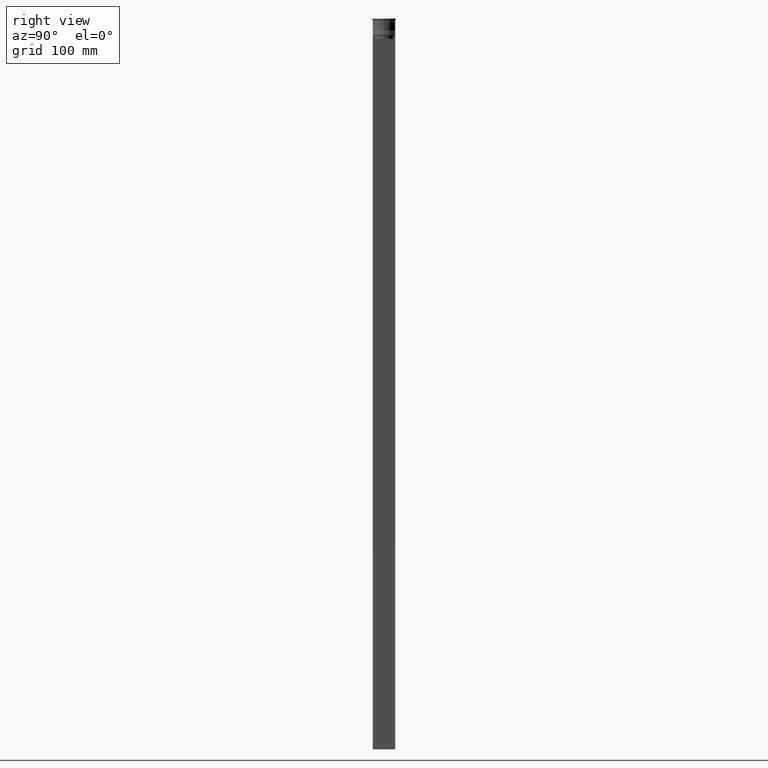
[diagram: clean part render]
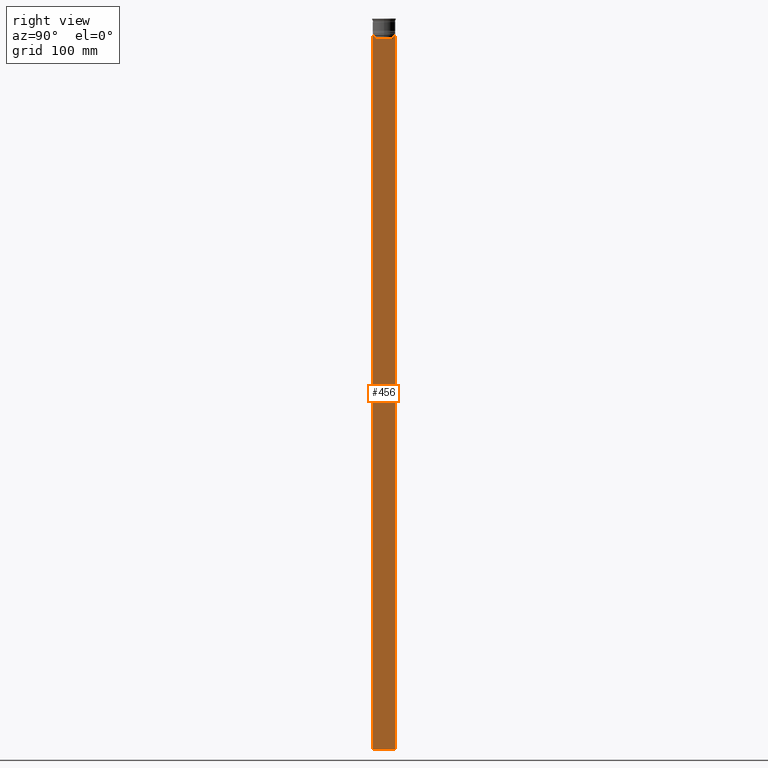
[diagram: same view with one face highlighted and labeled with its STEP entity id]
A machine part, right view. The second image highlights one B-rep face of the part: STEP entity #456.
In plain terms, the highlighted planar face has unit normal (-1, 0, 0).
Its self-contained STEP definition (entity closure, byte-faithful):
#60 = CARTESIAN_POINT ( 'NONE',  ( 0.5000000000000000000, 9.386692708297204035, -14.00000000000000178 ) ) ;
#70 = CARTESIAN_POINT ( 'NONE',  ( 0.5000000000000000000, 7.884161337770803080, 0.000000000000000000 ) ) ;
#77 = CARTESIAN_POINT ( 'NONE',  ( 0.5000000000000000000, -7.884161337770803080, 0.000000000000000000 ) ) ;
#78 = CARTESIAN_POINT ( 'NONE',  ( 0.5000000000000000000, -9.500000000000001776, -14.00000000000000178 ) ) ;
#87 = VERTEX_POINT ( 'NONE', #1213 ) ;
#130 = CARTESIAN_POINT ( 'NONE',  ( 0.5000000000000000000, -9.500000000000001776, -14.00000000000000178 ) ) ;
#141 = LINE ( 'NONE', #1969, #2013 ) ;
#145 = EDGE_CURVE ( 'NONE', #294, #668, #182, .T. ) ;
#182 = LINE ( 'NONE', #1000, #2451 ) ;
#213 = EDGE_CURVE ( 'NONE', #294, #270, #547, .T. ) ;
#238 = CARTESIAN_POINT ( 'NONE',  ( 0.5000000000000000000, -7.884161337770803080, -14.50000000000000000 ) ) ;
#246 = VERTEX_POINT ( 'NONE', #1133 ) ;
#260 = VECTOR ( 'NONE', #2550, 1000.000000000000000 ) ;
#265 = ORIENTED_EDGE ( 'NONE', *, *, #1553, .T. ) ;
#270 = VERTEX_POINT ( 'NONE', #1333 ) ;
#280 = CARTESIAN_POINT ( 'NONE',  ( 0.5000000000000000000, 8.385105843100605583, -14.00000000000000178 ) ) ;
#294 = VERTEX_POINT ( 'NONE', #484 ) ;
#300 = CARTESIAN_POINT ( 'NONE',  ( 0.5000000000000000000, -8.385105843100605583, -14.00000000000000178 ) ) ;
#309 = VECTOR ( 'NONE', #916, 1000.000000000000000 ) ;
#312 = EDGE_LOOP ( 'NONE', ( #1087, #935, #265, #698, #409, #2601, #1836, #1490, #2042, #2571, #2187, #632 ) ) ;
#321 = B_SPLINE_CURVE_WITH_KNOTS ( 'NONE', 3,
 ( #610, #1873, #1835, #594 ),
 .UNSPECIFIED., .F., .F.,
 ( 4, 4 ),
 ( 0.03673372442973153046, 0.03744389749832059688 ),
 .UNSPECIFIED. ) ;
#356 = CARTESIAN_POINT ( 'NONE',  ( 0.5000000000000000000, 8.385105843100605583, -14.00000000000000178 ) ) ;
#376 = CARTESIAN_POINT ( 'NONE',  ( 0.5000000000000000000, 7.884161337770803080, -14.50000000000000000 ) ) ;
#378 = FACE_OUTER_BOUND ( 'NONE', #312, .T. ) ;
#381 = AXIS2_PLACEMENT_3D ( 'NONE', #1755, #2593, #2541 ) ;
#409 = ORIENTED_EDGE ( 'NONE', *, *, #673, .T. ) ;
#456 = ADVANCED_FACE ( 'NONE', ( #378 ), #2638, .F. ) ;
#481 = VERTEX_POINT ( 'NONE', #280 ) ;
#484 = CARTESIAN_POINT ( 'NONE',  ( 0.5000000000000000000, 9.499999999999998224, -14.00000000000000178 ) ) ;
#502 = CARTESIAN_POINT ( 'NONE',  ( 0.5000000000000000000, 7.884161337770803080, -17.00000000000000000 ) ) ;
#531 = VERTEX_POINT ( 'NONE', #1261 ) ;
#547 = LINE ( 'NONE', #1778, #1275 ) ;
#579 = CARTESIAN_POINT ( 'NONE',  ( 0.5000000000000000000, 8.051152811434374001, -14.33334332653219079 ) ) ;
#594 = CARTESIAN_POINT ( 'NONE',  ( 0.5000000000000000000, -8.385105843100605583, -14.00000000000000178 ) ) ;
#600 = DIRECTION ( 'NONE',  ( 0.000000000000000000, -1.000000000000000000, 0.000000000000000000 ) ) ;
#610 = CARTESIAN_POINT ( 'NONE',  ( 0.5000000000000000000, -7.884161337770803080, -14.50000000000000000 ) ) ;
#632 = ORIENTED_EDGE ( 'NONE', *, *, #145, .T. ) ;
#639 = EDGE_CURVE ( 'NONE', #2170, #87, #1250, .T. ) ;
#668 = VERTEX_POINT ( 'NONE', #60 ) ;
#671 = CARTESIAN_POINT ( 'NONE',  ( 0.5000000000000000000, -9.500000000000001776, -14.00000000000000178 ) ) ;
#673 = EDGE_CURVE ( 'NONE', #87, #1015, #1691, .T. ) ;
#698 = ORIENTED_EDGE ( 'NONE', *, *, #639, .T. ) ;
#704 = LINE ( 'NONE', #70, #260 ) ;
#862 = CARTESIAN_POINT ( 'NONE',  ( 0.5000000000000000000, 7.899999999999994138, -17.00000000000000000 ) ) ;
#916 = DIRECTION ( 'NONE',  ( 0.000000000000000000, -1.000000000000000000, 0.000000000000000000 ) ) ;
#935 = ORIENTED_EDGE ( 'NONE', *, *, #1650, .T. ) ;
#949 = VECTOR ( 'NONE', #1308, 1000.000000000000000 ) ;
#1000 = CARTESIAN_POINT ( 'NONE',  ( 0.5000000000000000000, -9.500000000000001776, -14.00000000000000178 ) ) ;
#1015 = VERTEX_POINT ( 'NONE', #238 ) ;
#1030 = VECTOR ( 'NONE', #2300, 1000.000000000000000 ) ;
#1087 = ORIENTED_EDGE ( 'NONE', *, *, #1563, .T. ) ;
#1133 = CARTESIAN_POINT ( 'NONE',  ( 0.5000000000000000000, -9.500000000000001776, -14.00000000000000178 ) ) ;
#1136 = DIRECTION ( 'NONE',  ( -0.000000000000000000, -0.000000000000000000, 1.000000000000000000 ) ) ;
#1213 = CARTESIAN_POINT ( 'NONE',  ( 0.5000000000000000000, -7.884161337770803080, -17.00000000000000000 ) ) ;
#1250 = LINE ( 'NONE', #862, #949 ) ;
#1261 = CARTESIAN_POINT ( 'NONE',  ( 0.5000000000000000000, -9.500000000000001776, -614.0000000000000000 ) ) ;
#1275 = VECTOR ( 'NONE', #1958, 1000.000000000000000 ) ;
#1294 = VERTEX_POINT ( 'NONE', #2163 ) ;
#1308 = DIRECTION ( 'NONE',  ( 0.000000000000000000, -1.000000000000000000, 0.000000000000000000 ) ) ;
#1314 = DIRECTION ( 'NONE',  ( 0.000000000000000000, 1.000000000000000000, 0.000000000000000000 ) ) ;
#1333 = CARTESIAN_POINT ( 'NONE',  ( 0.5000000000000000000, 9.499999999999998224, -614.0000000000000000 ) ) ;
#1397 = DIRECTION ( 'NONE',  ( 0.000000000000000000, -1.000000000000000000, 0.000000000000000000 ) ) ;
#1449 = EDGE_CURVE ( 'NONE', #1015, #1534, #321, .T. ) ;
#1456 = VECTOR ( 'NONE', #1520, 1000.000000000000000 ) ;
#1480 = CARTESIAN_POINT ( 'NONE',  ( 0.5000000000000000000, -9.386692708297204035, -14.00000000000000178 ) ) ;
#1490 = ORIENTED_EDGE ( 'NONE', *, *, #2589, .T. ) ;
#1520 = DIRECTION ( 'NONE',  ( 0.000000000000000000, 0.000000000000000000, -1.000000000000000000 ) ) ;
#1534 = VERTEX_POINT ( 'NONE', #300 ) ;
#1537 = LINE ( 'NONE', #2377, #1456 ) ;
#1553 = EDGE_CURVE ( 'NONE', #1294, #2170, #704, .T. ) ;
#1563 = EDGE_CURVE ( 'NONE', #668, #481, #2523, .T. ) ;
#1594 = VERTEX_POINT ( 'NONE', #1480 ) ;
#1650 = EDGE_CURVE ( 'NONE', #481, #1294, #2039, .T. ) ;
#1673 = VECTOR ( 'NONE', #1397, 1000.000000000000000 ) ;
#1691 = LINE ( 'NONE', #77, #2531 ) ;
#1755 = CARTESIAN_POINT ( 'NONE',  ( 0.5000000000000000000, -9.500000000000001776, 5.026297590440445440 ) ) ;
#1778 = CARTESIAN_POINT ( 'NONE',  ( 0.5000000000000000000, 9.499999999999998224, 5.026297590440445440 ) ) ;
#1835 = CARTESIAN_POINT ( 'NONE',  ( 0.5000000000000000000, -8.218133703942523738, -14.16667607853445787 ) ) ;
#1836 = ORIENTED_EDGE ( 'NONE', *, *, #2353, .T. ) ;
#1873 = CARTESIAN_POINT ( 'NONE',  ( 0.5000000000000000000, -8.051152795888546265, -14.33334334204685057 ) ) ;
#1958 = DIRECTION ( 'NONE',  ( 0.000000000000000000, 0.000000000000000000, -1.000000000000000000 ) ) ;
#1969 = CARTESIAN_POINT ( 'NONE',  ( 0.5000000000000000000, -9.500000000000001776, -614.0000000000000000 ) ) ;
#1994 = CARTESIAN_POINT ( 'NONE',  ( 0.5000000000000000000, 8.218133718559618828, -14.16667606394327983 ) ) ;
#2013 = VECTOR ( 'NONE', #1314, 1000.000000000000000 ) ;
#2039 = B_SPLINE_CURVE_WITH_KNOTS ( 'NONE', 3,
 ( #356, #1994, #579, #376 ),
 .UNSPECIFIED., .F., .F.,
 ( 4, 4 ),
 ( 0.01426761478740281447, 0.01497538974438914448 ),
 .UNSPECIFIED. ) ;
#2042 = ORIENTED_EDGE ( 'NONE', *, *, #2477, .T. ) ;
#2098 = EDGE_CURVE ( 'NONE', #531, #270, #141, .T. ) ;
#2163 = CARTESIAN_POINT ( 'NONE',  ( 0.5000000000000000000, 7.884161337770803080, -14.50000000000000000 ) ) ;
#2170 = VERTEX_POINT ( 'NONE', #502 ) ;
#2187 = ORIENTED_EDGE ( 'NONE', *, *, #213, .F. ) ;
#2300 = DIRECTION ( 'NONE',  ( 0.000000000000000000, -1.000000000000000000, 0.000000000000000000 ) ) ;
#2353 = EDGE_CURVE ( 'NONE', #1534, #1594, #2590, .T. ) ;
#2377 = CARTESIAN_POINT ( 'NONE',  ( 0.5000000000000000000, -9.500000000000001776, 5.026297590440445440 ) ) ;
#2395 = LINE ( 'NONE', #78, #309 ) ;
#2451 = VECTOR ( 'NONE', #600, 1000.000000000000000 ) ;
#2477 = EDGE_CURVE ( 'NONE', #246, #531, #1537, .T. ) ;
#2523 = LINE ( 'NONE', #671, #1030 ) ;
#2531 = VECTOR ( 'NONE', #1136, 1000.000000000000000 ) ;
#2541 = DIRECTION ( 'NONE',  ( 0.000000000000000000, 0.000000000000000000, 1.000000000000000000 ) ) ;
#2550 = DIRECTION ( 'NONE',  ( 0.000000000000000000, 0.000000000000000000, -1.000000000000000000 ) ) ;
#2571 = ORIENTED_EDGE ( 'NONE', *, *, #2098, .T. ) ;
#2589 = EDGE_CURVE ( 'NONE', #1594, #246, #2395, .T. ) ;
#2590 = LINE ( 'NONE', #130, #1673 ) ;
#2593 = DIRECTION ( 'NONE',  ( -1.000000000000000000, 0.000000000000000000, 0.000000000000000000 ) ) ;
#2601 = ORIENTED_EDGE ( 'NONE', *, *, #1449, .T. ) ;
#2638 = PLANE ( 'NONE',  #381 ) ;